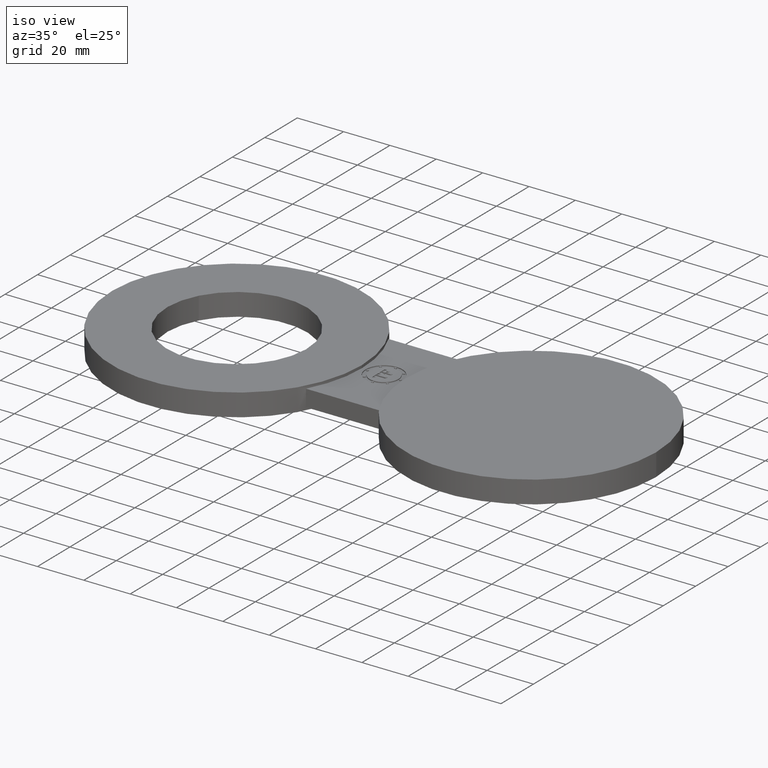
[diagram: clean part render]
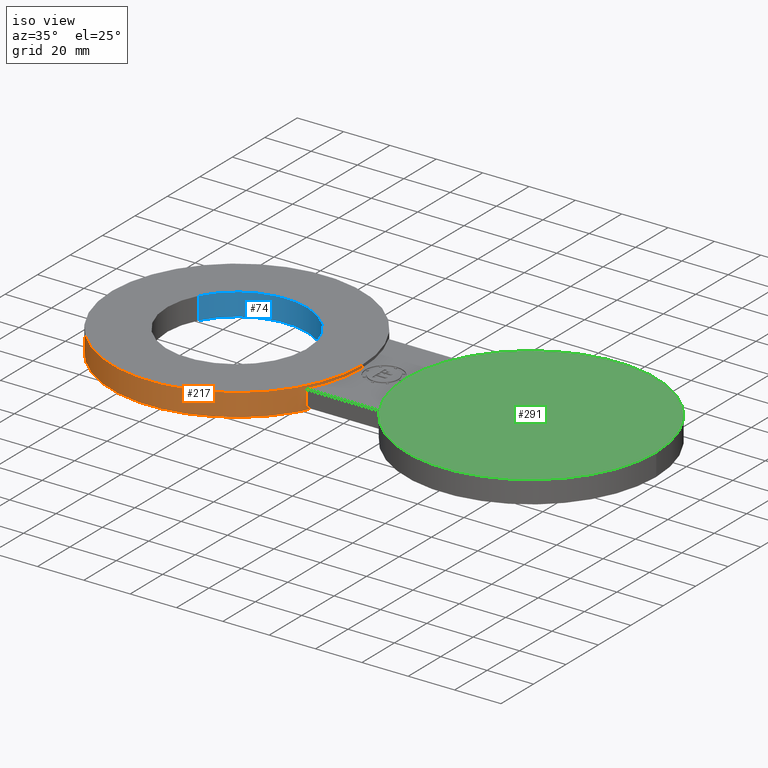
[diagram: same view with three faces highlighted in distinct colors, each labeled with its STEP entity id]
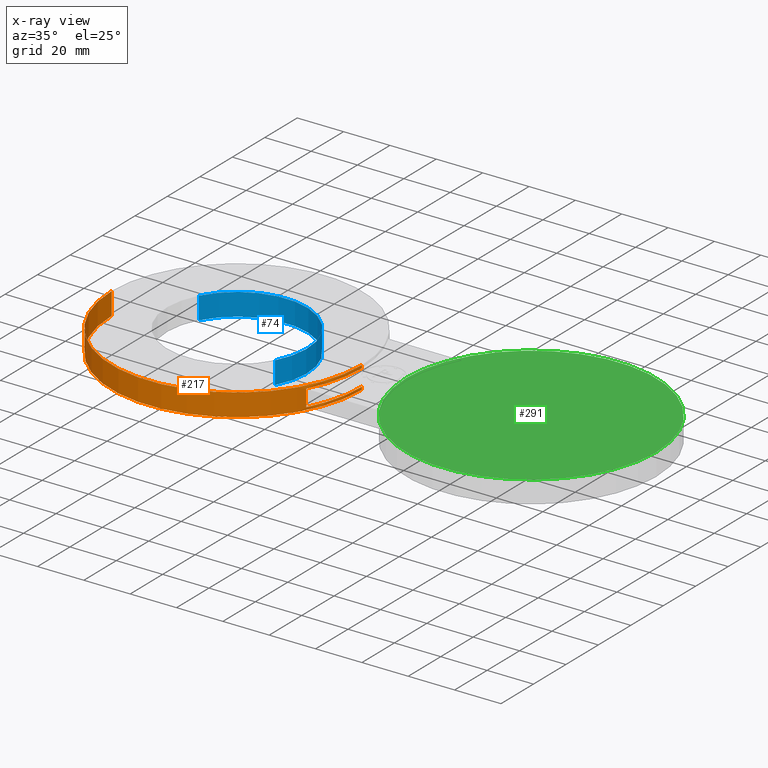
[diagram: x-ray of the same camera — body ghosted, the three highlighted faces saturated]
A machine part, iso view with three faces highlighted in distinct colors.
The next image is the same camera in x-ray (body ghosted, the three faces saturated) — at least one of them is partly hidden behind the body in this view.
Their STEP definitions:

[orange] entity #217 — the highlighted cylindrical surface (partial cylindrical patch) has radius 53.975 mm, axis along (0, 0, 1).
#91=AXIS2_PLACEMENT_3D('Circle Axis2P3D',#89,#90,$) ;
#123=AXIS2_PLACEMENT_3D('Cylinder Axis2P3D',#120,#121,#122) ;
#185=AXIS2_PLACEMENT_3D('Circle Axis2P3D',#183,#184,$) ;
#190=AXIS2_PLACEMENT_3D('Circle Axis2P3D',#188,#189,$) ;
#204=AXIS2_PLACEMENT_3D('Circle Axis2P3D',#202,#203,$) ;
#84=CARTESIAN_POINT('Vertex',(2.12500000001,0.,0.190000000001)) ;
#86=CARTESIAN_POINT('Vertex',(-2.12500000001,2.6023744482E-016,0.190000000001)) ;
#89=CARTESIAN_POINT('Axis2P3D Location',(0.,0.,0.190000000001)) ;
#120=CARTESIAN_POINT('Axis2P3D Location',(0.,0.,0.)) ;
#125=CARTESIAN_POINT('Line Origine',(2.12500000001,0.,0.)) ;
#129=CARTESIAN_POINT('Vertex',(2.12500000001,0.,-0.190000000001)) ;
#131=CARTESIAN_POINT('Vertex',(2.12500000001,0.,-0.142500000001)) ;
#138=CARTESIAN_POINT('Vertex',(-2.12500000001,2.6023744482E-016,-0.190000000001)) ;
#141=CARTESIAN_POINT('Line Origine',(-2.12500000001,2.6023744482E-016,0.)) ;
#146=CARTESIAN_POINT('Line Origine',(2.12500000001,0.,0.)) ;
#150=CARTESIAN_POINT('Vertex',(2.12500000001,0.,0.142500000001)) ;
#183=CARTESIAN_POINT('Axis2P3D Location',(0.,0.,-0.190000000001)) ;
#188=CARTESIAN_POINT('Axis2P3D Location',(0.,0.,-0.142500000001)) ;
#192=CARTESIAN_POINT('Vertex',(1.87500000001,-1.,-0.142500000001)) ;
#195=CARTESIAN_POINT('Line Origine',(1.87500000001,-1.,0.)) ;
#199=CARTESIAN_POINT('Vertex',(1.87500000001,-1.,0.142500000001)) ;
#202=CARTESIAN_POINT('Axis2P3D Location',(0.,0.,0.142500000001)) ;
#90=DIRECTION('Axis2P3D Direction',(0.,0.,0.0393700787402)) ;
#121=DIRECTION('Axis2P3D Direction',(0.,0.,0.0393700787402)) ;
#122=DIRECTION('Axis2P3D XDirection',(-0.0393700787402,4.82144409113E-018,0.)) ;
#126=DIRECTION('Vector Direction',(0.,0.,0.0393700787402)) ;
#142=DIRECTION('Vector Direction',(0.,0.,0.0393700787402)) ;
#147=DIRECTION('Vector Direction',(0.,0.,0.0393700787402)) ;
#184=DIRECTION('Axis2P3D Direction',(0.,0.,0.0393700787402)) ;
#189=DIRECTION('Axis2P3D Direction',(0.,0.,0.0393700787402)) ;
#196=DIRECTION('Vector Direction',(0.,0.,0.0393700787402)) ;
#203=DIRECTION('Axis2P3D Direction',(0.,0.,0.0393700787402)) ;
#127=VECTOR('Line Direction',#126,0.0393700787402) ;
#143=VECTOR('Line Direction',#142,0.0393700787402) ;
#148=VECTOR('Line Direction',#147,0.0393700787402) ;
#197=VECTOR('Line Direction',#196,0.0393700787402) ;
#208=ORIENTED_EDGE('',*,*,#152,.T.) ;
#209=ORIENTED_EDGE('',*,*,#93,.F.) ;
#210=ORIENTED_EDGE('',*,*,#145,.F.) ;
#211=ORIENTED_EDGE('',*,*,#187,.T.) ;
#212=ORIENTED_EDGE('',*,*,#133,.T.) ;
#213=ORIENTED_EDGE('',*,*,#194,.F.) ;
#214=ORIENTED_EDGE('',*,*,#201,.T.) ;
#215=ORIENTED_EDGE('',*,*,#206,.T.) ;
#217=ADVANCED_FACE('PartBody',(#216),#124,.T.) ;
#92=CIRCLE('generated circle',#91,2.12500000001) ;
#186=CIRCLE('generated circle',#185,2.12500000001) ;
#191=CIRCLE('generated circle',#190,2.12500000001) ;
#205=CIRCLE('generated circle',#204,2.12500000001) ;
#124=CYLINDRICAL_SURFACE('generated cylinder',#123,2.12500000001) ;
#93=EDGE_CURVE('',#87,#85,#92,.T.) ;
#133=EDGE_CURVE('',#130,#132,#128,.T.) ;
#145=EDGE_CURVE('',#139,#87,#144,.T.) ;
#152=EDGE_CURVE('',#151,#85,#149,.T.) ;
#187=EDGE_CURVE('',#139,#130,#186,.T.) ;
#194=EDGE_CURVE('',#193,#132,#191,.T.) ;
#201=EDGE_CURVE('',#193,#200,#198,.T.) ;
#206=EDGE_CURVE('',#200,#151,#205,.T.) ;
#207=EDGE_LOOP('',(#208,#209,#210,#211,#212,#213,#214,#215)) ;
#216=FACE_OUTER_BOUND('',#207,.T.) ;
#128=LINE('Line',#125,#127) ;
#144=LINE('Line',#141,#143) ;
#149=LINE('Line',#146,#148) ;
#198=LINE('Line',#195,#197) ;
#85=VERTEX_POINT('',#84) ;
#87=VERTEX_POINT('',#86) ;
#130=VERTEX_POINT('',#129) ;
#132=VERTEX_POINT('',#131) ;
#139=VERTEX_POINT('',#138) ;
#151=VERTEX_POINT('',#150) ;
#193=VERTEX_POINT('',#192) ;
#200=VERTEX_POINT('',#199) ;

[blue] entity #74 — the highlighted cylindrical surface (partial cylindrical patch) has radius 30.226 mm, axis along (0, -0, -1).
#38=AXIS2_PLACEMENT_3D('Cylinder Axis2P3D',#35,#36,#37) ;
#51=AXIS2_PLACEMENT_3D('Circle Axis2P3D',#49,#50,$) ;
#65=AXIS2_PLACEMENT_3D('Circle Axis2P3D',#63,#64,$) ;
#35=CARTESIAN_POINT('Axis2P3D Location',(8.52336574023E-017,-6.99353086378E-017,0.186062992127)) ;
#40=CARTESIAN_POINT('Line Origine',(-1.04432324865,0.570516390941,0.)) ;
#44=CARTESIAN_POINT('Vertex',(-1.04432324865,0.570516390941,-0.190000000001)) ;
#46=CARTESIAN_POINT('Vertex',(-1.04432324865,0.570516390941,0.190000000001)) ;
#49=CARTESIAN_POINT('Axis2P3D Location',(8.52336574023E-017,-6.99353086378E-017,-0.190000000001)) ;
#53=CARTESIAN_POINT('Vertex',(1.04432324865,-0.570516390941,-0.190000000001)) ;
#56=CARTESIAN_POINT('Line Origine',(1.04432324865,-0.570516390941,0.)) ;
#60=CARTESIAN_POINT('Vertex',(1.04432324865,-0.570516390941,0.190000000001)) ;
#63=CARTESIAN_POINT('Axis2P3D Location',(8.52336574023E-017,-6.99353086378E-017,0.190000000001)) ;
#36=DIRECTION('Axis2P3D Direction',(0.,-0.,-0.0393700787402)) ;
#37=DIRECTION('Axis2P3D XDirection',(0.0345504945626,-0.0188750212049,0.)) ;
#41=DIRECTION('Vector Direction',(0.,0.,-0.0393700787402)) ;
#50=DIRECTION('Axis2P3D Direction',(0.,-0.,-0.0393700787402)) ;
#57=DIRECTION('Vector Direction',(0.,0.,-0.0393700787402)) ;
#64=DIRECTION('Axis2P3D Direction',(0.,-0.,-0.0393700787402)) ;
#42=VECTOR('Line Direction',#41,0.0393700787402) ;
#58=VECTOR('Line Direction',#57,0.0393700787402) ;
#69=ORIENTED_EDGE('',*,*,#48,.F.) ;
#70=ORIENTED_EDGE('',*,*,#55,.F.) ;
#71=ORIENTED_EDGE('',*,*,#62,.T.) ;
#72=ORIENTED_EDGE('',*,*,#67,.T.) ;
#74=ADVANCED_FACE('PartBody',(#73),#39,.F.) ;
#52=CIRCLE('generated circle',#51,1.19) ;
#66=CIRCLE('generated circle',#65,1.19) ;
#39=CYLINDRICAL_SURFACE('generated cylinder',#38,1.19) ;
#48=EDGE_CURVE('',#45,#47,#43,.F.) ;
#55=EDGE_CURVE('',#54,#45,#52,.F.) ;
#62=EDGE_CURVE('',#54,#61,#59,.F.) ;
#67=EDGE_CURVE('',#61,#47,#66,.F.) ;
#68=EDGE_LOOP('',(#69,#70,#71,#72)) ;
#73=FACE_OUTER_BOUND('',#68,.T.) ;
#43=LINE('Line',#40,#42) ;
#59=LINE('Line',#56,#58) ;
#45=VERTEX_POINT('',#44) ;
#47=VERTEX_POINT('',#46) ;
#54=VERTEX_POINT('',#53) ;
#61=VERTEX_POINT('',#60) ;

[green] entity #291 — the highlighted planar face has unit normal (0, 0, 1).
#78=AXIS2_PLACEMENT_3D('Plane Axis2P3D',#75,#76,#77) ;
#275=AXIS2_PLACEMENT_3D('Circle Axis2P3D',#273,#274,$) ;
#284=AXIS2_PLACEMENT_3D('Circle Axis2P3D',#282,#283,$) ;
#75=CARTESIAN_POINT('Axis2P3D Location',(0.,0.,0.190000000001)) ;
#273=CARTESIAN_POINT('Axis2P3D Location',(5.00000000002,6.12323399576E-016,0.190000000001)) ;
#277=CARTESIAN_POINT('Vertex',(2.87500000001,8.72560844396E-016,0.190000000001)) ;
#279=CARTESIAN_POINT('Vertex',(7.12500000003,9.18485099364E-017,0.190000000001)) ;
#282=CARTESIAN_POINT('Axis2P3D Location',(5.00000000002,6.12323399576E-016,0.190000000001)) ;
#76=DIRECTION('Axis2P3D Direction',(0.,0.,0.0393700787402)) ;
#77=DIRECTION('Axis2P3D XDirection',(0.0393700787402,0.,0.)) ;
#274=DIRECTION('Axis2P3D Direction',(0.,0.,0.0393700787402)) ;
#283=DIRECTION('Axis2P3D Direction',(0.,0.,0.0393700787402)) ;
#288=ORIENTED_EDGE('',*,*,#281,.T.) ;
#289=ORIENTED_EDGE('',*,*,#286,.T.) ;
#291=ADVANCED_FACE('PartBody',(#290),#79,.T.) ;
#276=CIRCLE('generated circle',#275,2.12500000001) ;
#285=CIRCLE('generated circle',#284,2.12500000001) ;
#281=EDGE_CURVE('',#278,#280,#276,.T.) ;
#286=EDGE_CURVE('',#280,#278,#285,.T.) ;
#287=EDGE_LOOP('',(#288,#289)) ;
#290=FACE_OUTER_BOUND('',#287,.T.) ;
#79=PLANE('',#78) ;
#278=VERTEX_POINT('',#277) ;
#280=VERTEX_POINT('',#279) ;